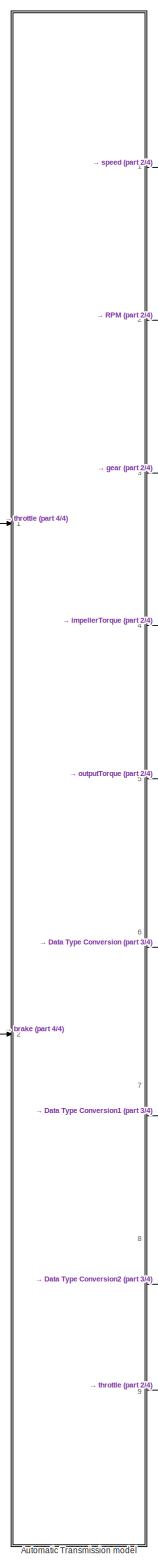
[diagram: root canvas - part 1/4, left side, full height]
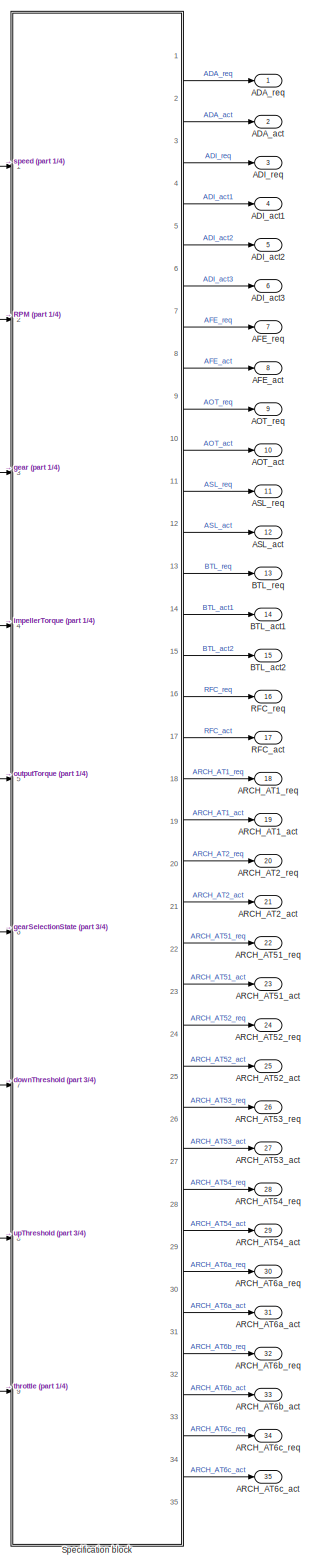
[diagram: root canvas - part 2/4, right side, full height]
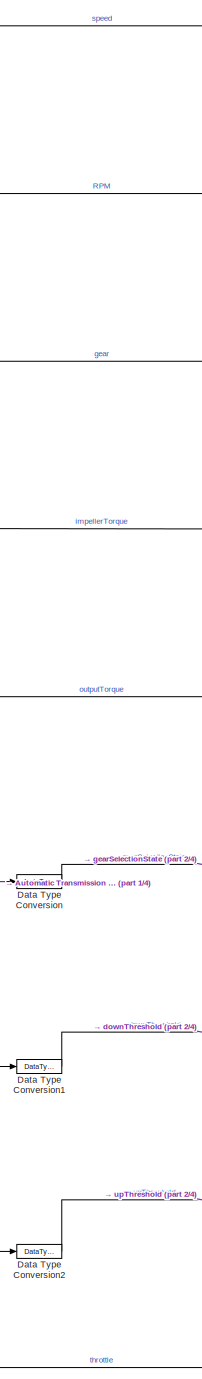
[diagram: root canvas - part 3/4, center side, full height]
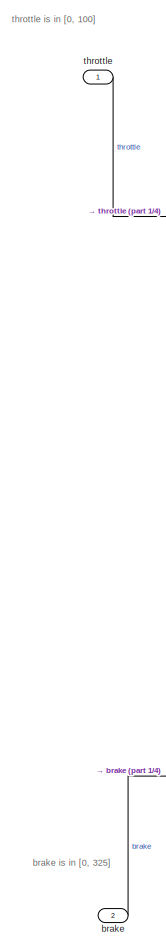
[diagram: root canvas - part 4/4, middle left region]
MODEL slx_581c22353498
KIND model
CONFIG AbsTol = auto
CONFIG EnableMultiTasking = off
CONFIG FixedStep = fixedStepSize
CONFIG MaxStep = auto
CONFIG MinStep = auto
CONFIG RelTol = 1e-3
CONFIG SampleTimeConstraint = Unconstrained
CONFIG Solver = FixedStepAuto
CONFIG SolverName = FixedStepAuto
CONFIG StartTime = 0.0
CONFIG StopTime = tspan(end)
BLOCK [Outport] ADA_act
  IconDisplay = Port number
  Port = 2
  VectorParamsAs1DForOutWhenUnconnected = off
BLOCK [Outport] ADA_req
  IconDisplay = Port number
  VectorParamsAs1DForOutWhenUnconnected = off
BLOCK [Outport] ADI_act1
  IconDisplay = Port number
  Port = 4
  VectorParamsAs1DForOutWhenUnconnected = off
BLOCK [Outport] ADI_act2
  IconDisplay = Port number
  Port = 5
  VectorParamsAs1DForOutWhenUnconnected = off
BLOCK [Outport] ADI_act3
  IconDisplay = Port number
  Port = 6
  VectorParamsAs1DForOutWhenUnconnected = off
BLOCK [Outport] ADI_req
  IconDisplay = Port number
  Port = 3
  VectorParamsAs1DForOutWhenUnconnected = off
BLOCK [Outport] AFE_act
  IconDisplay = Port number
  Port = 8
  VectorParamsAs1DForOutWhenUnconnected = off
BLOCK [Outport] AFE_req
  IconDisplay = Port number
  Port = 7
  VectorParamsAs1DForOutWhenUnconnected = off
BLOCK [Outport] AOT_act
  IconDisplay = Port number
  Port = 10
  VectorParamsAs1DForOutWhenUnconnected = off
BLOCK [Outport] AOT_req
  IconDisplay = Port number
  Port = 9
  VectorParamsAs1DForOutWhenUnconnected = off
BLOCK [Outport] ARCH_AT1_act
  IconDisplay = Port number
  Port = 19
  VectorParamsAs1DForOutWhenUnconnected = off
BLOCK [Outport] ARCH_AT1_req
  IconDisplay = Port number
  Port = 18
  VectorParamsAs1DForOutWhenUnconnected = off
BLOCK [Outport] ARCH_AT2_act
  IconDisplay = Port number
  Port = 21
  VectorParamsAs1DForOutWhenUnconnected = off
BLOCK [Outport] ARCH_AT2_req
  IconDisplay = Port number
  Port = 20
  VectorParamsAs1DForOutWhenUnconnected = off
BLOCK [Outport] ARCH_AT51_act
  IconDisplay = Port number
  Port = 23
  VectorParamsAs1DForOutWhenUnconnected = off
BLOCK [Outport] ARCH_AT51_req
  IconDisplay = Port number
  Port = 22
  VectorParamsAs1DForOutWhenUnconnected = off
BLOCK [Outport] ARCH_AT52_act
  IconDisplay = Port number
  Port = 25
  VectorParamsAs1DForOutWhenUnconnected = off
BLOCK [Outport] ARCH_AT52_req
  IconDisplay = Port number
  Port = 24
  VectorParamsAs1DForOutWhenUnconnected = off
BLOCK [Outport] ARCH_AT53_act
  IconDisplay = Port number
  Port = 27
  VectorParamsAs1DForOutWhenUnconnected = off
BLOCK [Outport] ARCH_AT53_req
  IconDisplay = Port number
  Port = 26
  VectorParamsAs1DForOutWhenUnconnected = off
BLOCK [Outport] ARCH_AT54_act
  IconDisplay = Port number
  Port = 29
  VectorParamsAs1DForOutWhenUnconnected = off
BLOCK [Outport] ARCH_AT54_req
  IconDisplay = Port number
  Port = 28
  VectorParamsAs1DForOutWhenUnconnected = off
BLOCK [Outport] ARCH_AT6a_act
  IconDisplay = Port number
  Port = 31
  VectorParamsAs1DForOutWhenUnconnected = off
BLOCK [Outport] ARCH_AT6a_req
  IconDisplay = Port number
  Port = 30
  VectorParamsAs1DForOutWhenUnconnected = off
BLOCK [Outport] ARCH_AT6b_act
  IconDisplay = Port number
  Port = 33
  VectorParamsAs1DForOutWhenUnconnected = off
BLOCK [Outport] ARCH_AT6b_req
  IconDisplay = Port number
  Port = 32
  VectorParamsAs1DForOutWhenUnconnected = off
BLOCK [Outport] ARCH_AT6c_act
  IconDisplay = Port number
  Port = 35
  VectorParamsAs1DForOutWhenUnconnected = off
BLOCK [Outport] ARCH_AT6c_req
  IconDisplay = Port number
  Port = 34
  VectorParamsAs1DForOutWhenUnconnected = off
BLOCK [Outport] ASL_act
  IconDisplay = Port number
  Port = 12
  VectorParamsAs1DForOutWhenUnconnected = off
BLOCK [Outport] ASL_req
  IconDisplay = Port number
  Port = 11
  VectorParamsAs1DForOutWhenUnconnected = off
BLOCK [ModelReference] Automatic Transmission model
  ModelNameDialog = AT_logged_signals.mdl
  ModelReferenceVersion = 1.276
  Ports = [2, 9]
BLOCK [Outport] BTL_act1
  IconDisplay = Port number
  Port = 14
  VectorParamsAs1DForOutWhenUnconnected = off
BLOCK [Outport] BTL_act2
  IconDisplay = Port number
  Port = 15
  VectorParamsAs1DForOutWhenUnconnected = off
BLOCK [Outport] BTL_req
  IconDisplay = Port number
  Port = 13
  VectorParamsAs1DForOutWhenUnconnected = off
BLOCK [DataTypeConversion] Data Type Conversion
  OutDataTypeStr = double
  RndMeth = Floor
  SaturateOnIntegerOverflow = off
BLOCK [DataTypeConversion] Data Type Conversion1
  OutDataTypeStr = double
  RndMeth = Floor
  SaturateOnIntegerOverflow = off
BLOCK [DataTypeConversion] Data Type Conversion2
  OutDataTypeStr = double
  RndMeth = Floor
  SaturateOnIntegerOverflow = off
BLOCK [Outport] RFC_act
  IconDisplay = Port number
  Port = 17
  VectorParamsAs1DForOutWhenUnconnected = off
BLOCK [Outport] RFC_req
  IconDisplay = Port number
  Port = 16
  VectorParamsAs1DForOutWhenUnconnected = off
BLOCK [ModelReference] Specification block
  ModelNameDialog = specifications
  ModelReferenceVersion = 1.32
  Ports = [9, 35]
BLOCK [Inport] brake
  IconDisplay = Port number
  Port = 2
BLOCK [Inport] throttle
  IconDisplay = Port number
ANNOTATION (root): brake is in [0, 325]
ANNOTATION (root): throttle is in [0, 100]
LINE Automatic Transmission model:1 -> Specification block:1
LINE Automatic Transmission model:2 -> Specification block:2
LINE Automatic Transmission model:3 -> Specification block:3
LINE Automatic Transmission model:4 -> Specification block:4
LINE Automatic Transmission model:5 -> Specification block:5
LINE Automatic Transmission model:6 -> Data Type Conversion:1
LINE Automatic Transmission model:7 -> Data Type Conversion1:1
LINE Automatic Transmission model:8 -> Data Type Conversion2:1
LINE Automatic Transmission model:9 -> Specification block:9
LINE Data Type Conversion1:1 -> Specification block:7
LINE Data Type Conversion2:1 -> Specification block:8
LINE Data Type Conversion:1 -> Specification block:6
LINE Specification block:1 -> ADA_req:1
LINE Specification block:10 -> AOT_act:1
LINE Specification block:11 -> ASL_req:1
LINE Specification block:12 -> ASL_act:1
LINE Specification block:13 -> BTL_req:1
LINE Specification block:14 -> BTL_act1:1
LINE Specification block:15 -> BTL_act2:1
LINE Specification block:16 -> RFC_req:1
LINE Specification block:17 -> RFC_act:1
LINE Specification block:18 -> ARCH_AT1_req:1
LINE Specification block:19 -> ARCH_AT1_act:1
LINE Specification block:2 -> ADA_act:1
LINE Specification block:20 -> ARCH_AT2_req:1
LINE Specification block:21 -> ARCH_AT2_act:1
LINE Specification block:22 -> ARCH_AT51_req:1
LINE Specification block:23 -> ARCH_AT51_act:1
LINE Specification block:24 -> ARCH_AT52_req:1
LINE Specification block:25 -> ARCH_AT52_act:1
LINE Specification block:26 -> ARCH_AT53_req:1
LINE Specification block:27 -> ARCH_AT53_act:1
LINE Specification block:28 -> ARCH_AT54_req:1
LINE Specification block:29 -> ARCH_AT54_act:1
LINE Specification block:3 -> ADI_req:1
LINE Specification block:30 -> ARCH_AT6a_req:1
LINE Specification block:31 -> ARCH_AT6a_act:1
LINE Specification block:32 -> ARCH_AT6b_req:1
LINE Specification block:33 -> ARCH_AT6b_act:1
LINE Specification block:34 -> ARCH_AT6c_req:1
LINE Specification block:35 -> ARCH_AT6c_act:1
LINE Specification block:4 -> ADI_act1:1
LINE Specification block:5 -> ADI_act2:1
LINE Specification block:6 -> ADI_act3:1
LINE Specification block:7 -> AFE_req:1
LINE Specification block:8 -> AFE_act:1
LINE Specification block:9 -> AOT_req:1
LINE brake:1 -> Automatic Transmission model:2
LINE throttle:1 -> Automatic Transmission model:1
